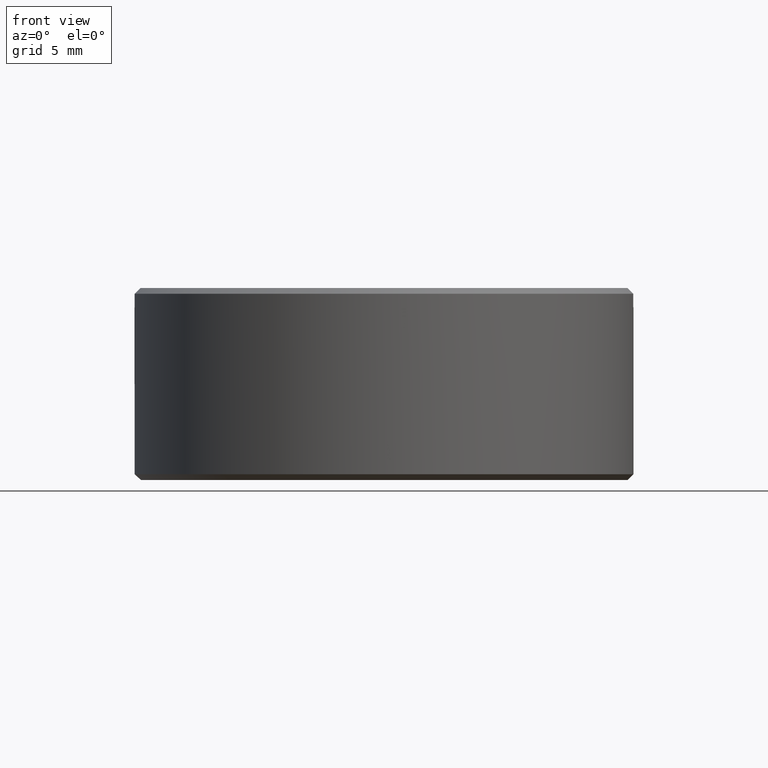
[diagram: clean part render]
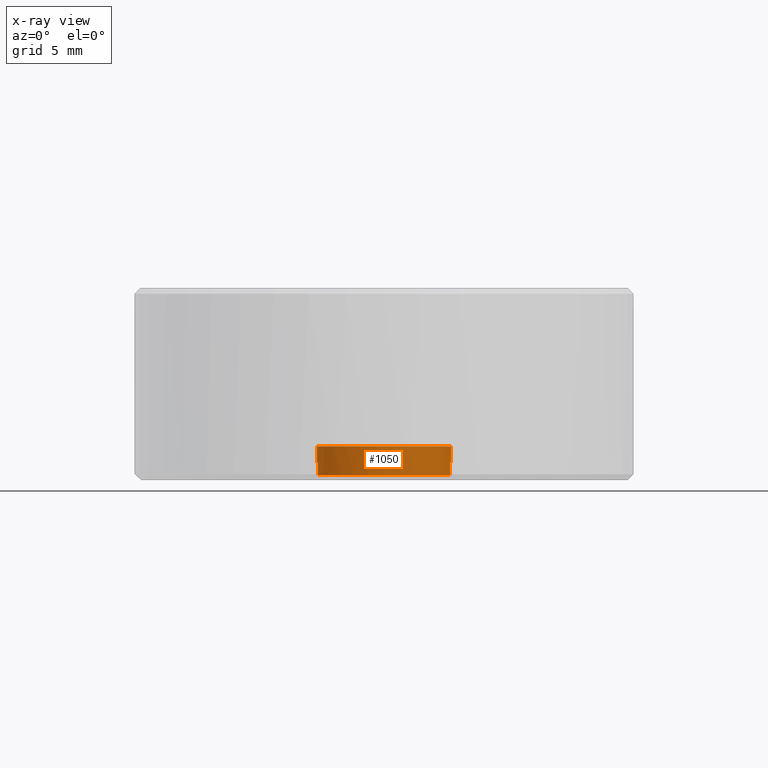
[diagram: x-ray — body ghosted, one internal face saturated and labeled with its STEP entity id]
A machine part, front view, then the same camera in x-ray: the body is ghosted and one INTERNAL B-rep face — a face not visible from any outside direction — is saturated and labeled: STEP entity #1050.
In plain terms, the highlighted cylindrical surface (bore or boss wall) has radius 3.5 mm, axis along (0, 0, -1).
Its self-contained STEP definition (entity closure, byte-faithful):
#38 = DIRECTION ( 'NONE',  ( -0.000000000000000000, -0.000000000000000000, 1.000000000000000000 ) ) ;
#40 = CYLINDRICAL_SURFACE ( 'NONE', #481, 3.500000000000003109 ) ;
#83 = VECTOR ( 'NONE', #1088, 1000.000000000000000 ) ;
#88 = VECTOR ( 'NONE', #552, 1000.000000000000000 ) ;
#108 = AXIS2_PLACEMENT_3D ( 'NONE', #701, #1183, #1190 ) ;
#153 = EDGE_LOOP ( 'NONE', ( #708 ) ) ;
#168 = CARTESIAN_POINT ( 'NONE',  ( 3.448187929913336447, -0.5999999999999994227, -4.099999999999999645 ) ) ;
#176 = FACE_OUTER_BOUND ( 'NONE', #153, .T. ) ;
#184 = DIRECTION ( 'NONE',  ( 0.000000000000000000, 0.000000000000000000, -1.000000000000000000 ) ) ;
#197 = EDGE_CURVE ( 'NONE', #1067, #398, #342, .T. ) ;
#219 = VERTEX_POINT ( 'NONE', #962 ) ;
#224 = VERTEX_POINT ( 'NONE', #842 ) ;
#260 = LINE ( 'NONE', #854, #83 ) ;
#308 = EDGE_CURVE ( 'NONE', #702, #1067, #260, .T. ) ;
#310 = EDGE_LOOP ( 'NONE', ( #1167, #889, #653, #789, #621, #1468, #931, #1552 ) ) ;
#341 = CARTESIAN_POINT ( 'NONE',  ( -3.500000000000003109, 0.000000000000000000, -3.250000000000000000 ) ) ;
#342 = CIRCLE ( 'NONE', #1073, 3.500000000000003109 ) ;
#373 = CIRCLE ( 'NONE', #687, 3.500000000000003109 ) ;
#398 = VERTEX_POINT ( 'NONE', #1606 ) ;
#401 = DIRECTION ( 'NONE',  ( 0.000000000000000000, 0.000000000000000000, -1.000000000000000000 ) ) ;
#406 = CARTESIAN_POINT ( 'NONE',  ( 3.448187929890341064, 0.5999999999999998668, -4.749999999984226839 ) ) ;
#481 = AXIS2_PLACEMENT_3D ( 'NONE', #542, #184, #1393 ) ;
#502 = EDGE_CURVE ( 'NONE', #817, #224, #1374, .T. ) ;
#542 = CARTESIAN_POINT ( 'NONE',  ( 0.000000000000000000, 0.000000000000000000, -3.000000000000000000 ) ) ;
#550 = VERTEX_POINT ( 'NONE', #1464 ) ;
#552 = DIRECTION ( 'NONE',  ( 0.000000000000000000, 0.000000000000000000, -1.000000000000000000 ) ) ;
#573 = DIRECTION ( 'NONE',  ( -0.000000000000000000, -0.000000000000000000, 1.000000000000000000 ) ) ;
#576 = VERTEX_POINT ( 'NONE', #722 ) ;
#621 = ORIENTED_EDGE ( 'NONE', *, *, #197, .T. ) ;
#651 = CIRCLE ( 'NONE', #1477, 3.500000000000003109 ) ;
#653 = ORIENTED_EDGE ( 'NONE', *, *, #1097, .T. ) ;
#659 = EDGE_CURVE ( 'NONE', #550, #576, #651, .T. ) ;
#662 = FACE_OUTER_BOUND ( 'NONE', #310, .T. ) ;
#669 = DIRECTION ( 'NONE',  ( -0.000000000000000000, -0.000000000000000000, 1.000000000000000000 ) ) ;
#687 = AXIS2_PLACEMENT_3D ( 'NONE', #1171, #669, #798 ) ;
#701 = CARTESIAN_POINT ( 'NONE',  ( 0.000000000000000000, 0.000000000000000000, -3.250000000000000000 ) ) ;
#702 = VERTEX_POINT ( 'NONE', #1241 ) ;
#708 = ORIENTED_EDGE ( 'NONE', *, *, #983, .T. ) ;
#722 = CARTESIAN_POINT ( 'NONE',  ( -3.448187929913336447, -0.6000000000000007550, -4.099999999999999645 ) ) ;
#757 = CARTESIAN_POINT ( 'NONE',  ( 0.000000000000000000, 0.000000000000000000, -4.099999999999999645 ) ) ;
#789 = ORIENTED_EDGE ( 'NONE', *, *, #308, .T. ) ;
#796 = CARTESIAN_POINT ( 'NONE',  ( 3.448187929913336447, 0.5999999999999997558, -3.000000000000000000 ) ) ;
#798 = DIRECTION ( 'NONE',  ( -1.000000000000000000, 0.000000000000000000, 0.000000000000000000 ) ) ;
#817 = VERTEX_POINT ( 'NONE', #406 ) ;
#828 = VECTOR ( 'NONE', #401, 1000.000000000000000 ) ;
#842 = CARTESIAN_POINT ( 'NONE',  ( -3.448187929894088288, 0.6000000000000000888, -4.749999999980535570 ) ) ;
#853 = VECTOR ( 'NONE', #1237, 1000.000000000000000 ) ;
#854 = CARTESIAN_POINT ( 'NONE',  ( 3.448187929913336891, -0.5999999999999988676, -3.000000000000000000 ) ) ;
#877 = EDGE_CURVE ( 'NONE', #576, #219, #1255, .T. ) ;
#889 = ORIENTED_EDGE ( 'NONE', *, *, #877, .T. ) ;
#930 = CARTESIAN_POINT ( 'NONE',  ( -3.448187929913336003, -0.6000000000000016431, -3.000000000000000000 ) ) ;
#931 = ORIENTED_EDGE ( 'NONE', *, *, #502, .T. ) ;
#934 = LINE ( 'NONE', #796, #828 ) ;
#962 = CARTESIAN_POINT ( 'NONE',  ( -3.448187929890341064, -0.6000000000000007550, -4.749999999984225951 ) ) ;
#983 = EDGE_CURVE ( 'NONE', #1444, #1444, #1143, .T. ) ;
#1050 = ADVANCED_FACE ( 'NONE', ( #176, #662 ), #40, .T. ) ;
#1067 = VERTEX_POINT ( 'NONE', #168 ) ;
#1073 = AXIS2_PLACEMENT_3D ( 'NONE', #1188, #573, #1082 ) ;
#1082 = DIRECTION ( 'NONE',  ( -1.000000000000000000, 3.552713678800500929E-15, 0.000000000000000000 ) ) ;
#1088 = DIRECTION ( 'NONE',  ( -0.000000000000000000, -0.000000000000000000, 1.000000000000000000 ) ) ;
#1097 = EDGE_CURVE ( 'NONE', #219, #702, #373, .T. ) ;
#1143 = CIRCLE ( 'NONE', #108, 3.500000000000003109 ) ;
#1167 = ORIENTED_EDGE ( 'NONE', *, *, #659, .T. ) ;
#1171 = CARTESIAN_POINT ( 'NONE',  ( 0.000000000000000000, 0.000000000000000000, -4.749999999999999112 ) ) ;
#1179 = CARTESIAN_POINT ( 'NONE',  ( 0.000000000000000000, 0.000000000000000000, -4.749999999999999112 ) ) ;
#1183 = DIRECTION ( 'NONE',  ( 0.000000000000000000, 0.000000000000000000, -1.000000000000000000 ) ) ;
#1188 = CARTESIAN_POINT ( 'NONE',  ( 0.000000000000000000, 0.000000000000000000, -4.099999999999999645 ) ) ;
#1190 = DIRECTION ( 'NONE',  ( -1.000000000000000000, 0.000000000000000000, 0.000000000000000000 ) ) ;
#1228 = DIRECTION ( 'NONE',  ( -0.000000000000000000, -0.000000000000000000, 1.000000000000000000 ) ) ;
#1237 = DIRECTION ( 'NONE',  ( -0.000000000000000000, -0.000000000000000000, 1.000000000000000000 ) ) ;
#1241 = CARTESIAN_POINT ( 'NONE',  ( 3.448187929890341952, -0.5999999999999994227, -4.749999999984226839 ) ) ;
#1255 = LINE ( 'NONE', #930, #88 ) ;
#1325 = AXIS2_PLACEMENT_3D ( 'NONE', #1179, #38, #1425 ) ;
#1342 = EDGE_CURVE ( 'NONE', #224, #550, #1601, .T. ) ;
#1363 = CARTESIAN_POINT ( 'NONE',  ( -3.448187929913336447, 0.6000000000000000888, -3.000000000000000000 ) ) ;
#1374 = CIRCLE ( 'NONE', #1325, 3.500000000000003109 ) ;
#1393 = DIRECTION ( 'NONE',  ( -1.000000000000000000, 0.000000000000000000, 0.000000000000000000 ) ) ;
#1425 = DIRECTION ( 'NONE',  ( -1.000000000000000000, 0.000000000000000000, 0.000000000000000000 ) ) ;
#1444 = VERTEX_POINT ( 'NONE', #341 ) ;
#1464 = CARTESIAN_POINT ( 'NONE',  ( -3.448187929913336447, 0.6000000000000000888, -4.099999999999999645 ) ) ;
#1468 = ORIENTED_EDGE ( 'NONE', *, *, #1594, .T. ) ;
#1477 = AXIS2_PLACEMENT_3D ( 'NONE', #757, #1228, #1605 ) ;
#1552 = ORIENTED_EDGE ( 'NONE', *, *, #1342, .T. ) ;
#1594 = EDGE_CURVE ( 'NONE', #398, #817, #934, .T. ) ;
#1601 = LINE ( 'NONE', #1363, #853 ) ;
#1605 = DIRECTION ( 'NONE',  ( -1.000000000000000000, 0.000000000000000000, 0.000000000000000000 ) ) ;
#1606 = CARTESIAN_POINT ( 'NONE',  ( 3.448187929913051342, 0.5999999999999999778, -4.099999999999999645 ) ) ;